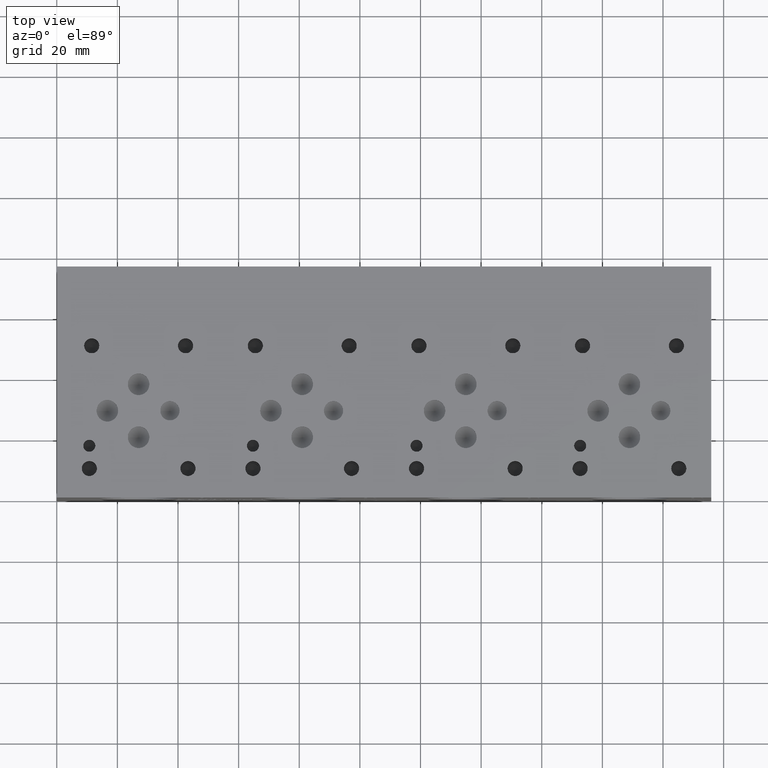
[diagram: clean part render]
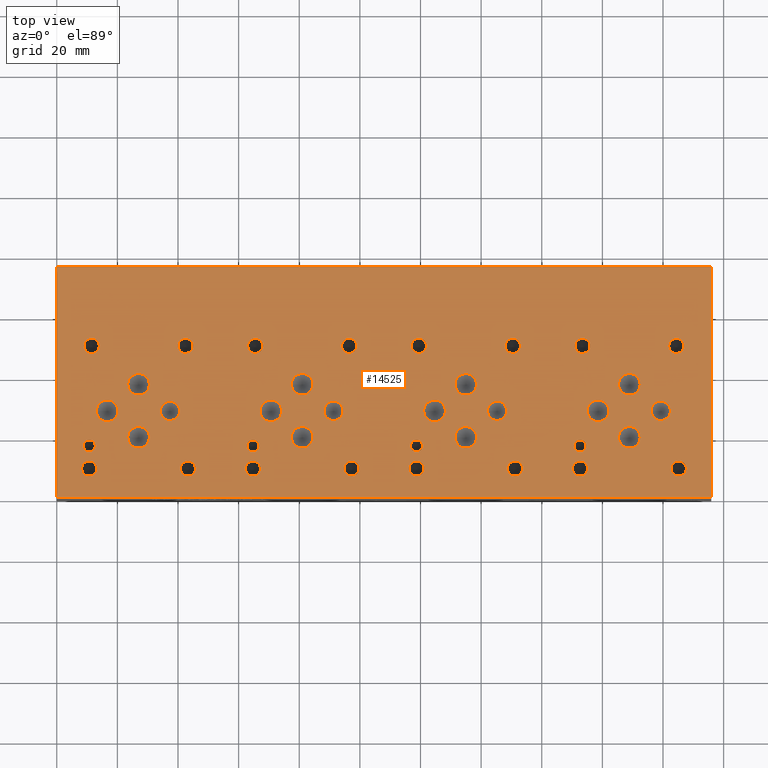
[diagram: same view with one face highlighted and labeled with its STEP entity id]
A machine part, top view. The second image highlights one B-rep face of the part: STEP entity #14525.
In plain terms, the highlighted planar face has unit normal (0, 0, 1).
Its self-contained STEP definition (entity closure, byte-faithful):
#403=CIRCLE('',#15236,2.5019);
#404=CIRCLE('',#15237,2.5019);
#410=CIRCLE('',#15247,2.5019);
#411=CIRCLE('',#15248,2.5019);
#417=CIRCLE('',#15258,2.5019);
#418=CIRCLE('',#15259,2.5019);
#424=CIRCLE('',#15269,2.5019);
#425=CIRCLE('',#15270,2.5019);
#431=CIRCLE('',#15280,2.5019);
#432=CIRCLE('',#15281,2.5019);
#438=CIRCLE('',#15291,2.5019);
#439=CIRCLE('',#15292,2.5019);
#445=CIRCLE('',#15302,2.5019);
#446=CIRCLE('',#15303,2.5019);
#452=CIRCLE('',#15313,2.5019);
#453=CIRCLE('',#15314,2.5019);
#459=CIRCLE('',#15324,2.5019);
#460=CIRCLE('',#15325,2.5019);
#466=CIRCLE('',#15335,2.5019);
#467=CIRCLE('',#15336,2.5019);
#473=CIRCLE('',#15346,2.5019);
#474=CIRCLE('',#15347,2.5019);
#480=CIRCLE('',#15357,2.5019);
#481=CIRCLE('',#15358,2.5019);
#484=CIRCLE('',#15364,3.175);
#485=CIRCLE('',#15365,3.175);
#488=CIRCLE('',#15370,3.175);
#489=CIRCLE('',#15371,3.175);
#492=CIRCLE('',#15376,3.175);
#493=CIRCLE('',#15377,3.175);
#496=CIRCLE('',#15382,3.175);
#497=CIRCLE('',#15383,3.175);
#500=CIRCLE('',#15388,3.5687);
#501=CIRCLE('',#15389,3.5687);
#504=CIRCLE('',#15394,3.5687);
#505=CIRCLE('',#15395,3.5687);
#508=CIRCLE('',#15400,3.5687);
#509=CIRCLE('',#15401,3.5687);
#512=CIRCLE('',#15406,3.5687);
#513=CIRCLE('',#15407,3.5687);
#516=CIRCLE('',#15412,3.5687);
#517=CIRCLE('',#15413,3.5687);
#520=CIRCLE('',#15418,3.5687);
#521=CIRCLE('',#15419,3.5687);
#524=CIRCLE('',#15424,3.5687);
#525=CIRCLE('',#15425,3.5687);
#528=CIRCLE('',#15430,3.5687);
#529=CIRCLE('',#15431,3.5687);
#532=CIRCLE('',#15436,3.5687);
#533=CIRCLE('',#15437,3.5687);
#536=CIRCLE('',#15442,3.5687);
#537=CIRCLE('',#15443,3.5687);
#540=CIRCLE('',#15448,3.5687);
#541=CIRCLE('',#15449,3.5687);
#544=CIRCLE('',#15454,3.5687);
#545=CIRCLE('',#15455,3.5687);
#548=CIRCLE('',#15460,1.9812);
#549=CIRCLE('',#15461,1.9812);
#552=CIRCLE('',#15466,1.9812);
#553=CIRCLE('',#15467,1.9812);
#556=CIRCLE('',#15472,1.9812);
#557=CIRCLE('',#15473,1.9812);
#560=CIRCLE('',#15478,1.9812);
#561=CIRCLE('',#15479,1.9812);
#567=CIRCLE('',#15488,2.5019);
#568=CIRCLE('',#15489,2.5019);
#574=CIRCLE('',#15499,2.5019);
#575=CIRCLE('',#15500,2.5019);
#581=CIRCLE('',#15510,2.5019);
#582=CIRCLE('',#15511,2.5019);
#588=CIRCLE('',#15521,2.5019);
#589=CIRCLE('',#15522,2.5019);
#704=FACE_BOUND('',#2843,.T.);
#705=FACE_BOUND('',#2844,.T.);
#706=FACE_BOUND('',#2845,.T.);
#707=FACE_BOUND('',#2846,.T.);
#708=FACE_BOUND('',#2847,.T.);
#709=FACE_BOUND('',#2848,.T.);
#710=FACE_BOUND('',#2849,.T.);
#711=FACE_BOUND('',#2850,.T.);
#712=FACE_BOUND('',#2851,.T.);
#713=FACE_BOUND('',#2852,.T.);
#714=FACE_BOUND('',#2853,.T.);
#715=FACE_BOUND('',#2854,.T.);
#716=FACE_BOUND('',#2855,.T.);
#717=FACE_BOUND('',#2856,.T.);
#718=FACE_BOUND('',#2857,.T.);
#719=FACE_BOUND('',#2858,.T.);
#720=FACE_BOUND('',#2859,.T.);
#721=FACE_BOUND('',#2860,.T.);
#722=FACE_BOUND('',#2861,.T.);
#723=FACE_BOUND('',#2862,.T.);
#724=FACE_BOUND('',#2863,.T.);
#725=FACE_BOUND('',#2864,.T.);
#726=FACE_BOUND('',#2865,.T.);
#727=FACE_BOUND('',#2866,.T.);
#728=FACE_BOUND('',#2867,.T.);
#729=FACE_BOUND('',#2868,.T.);
#730=FACE_BOUND('',#2869,.T.);
#731=FACE_BOUND('',#2870,.T.);
#732=FACE_BOUND('',#2871,.T.);
#733=FACE_BOUND('',#2872,.T.);
#734=FACE_BOUND('',#2873,.T.);
#735=FACE_BOUND('',#2874,.T.);
#736=FACE_BOUND('',#2875,.T.);
#737=FACE_BOUND('',#2876,.T.);
#738=FACE_BOUND('',#2877,.T.);
#739=FACE_BOUND('',#2878,.T.);
#1979=FACE_OUTER_BOUND('',#2842,.T.);
#2842=EDGE_LOOP('',(#12781,#12782,#12783,#12784));
#2843=EDGE_LOOP('',(#12785,#12786));
#2844=EDGE_LOOP('',(#12787,#12788));
#2845=EDGE_LOOP('',(#12789,#12790));
#2846=EDGE_LOOP('',(#12791,#12792));
#2847=EDGE_LOOP('',(#12793,#12794));
#2848=EDGE_LOOP('',(#12795,#12796));
#2849=EDGE_LOOP('',(#12797,#12798));
#2850=EDGE_LOOP('',(#12799,#12800));
#2851=EDGE_LOOP('',(#12801,#12802));
#2852=EDGE_LOOP('',(#12803,#12804));
#2853=EDGE_LOOP('',(#12805,#12806));
#2854=EDGE_LOOP('',(#12807,#12808));
#2855=EDGE_LOOP('',(#12809,#12810));
#2856=EDGE_LOOP('',(#12811,#12812));
#2857=EDGE_LOOP('',(#12813,#12814));
#2858=EDGE_LOOP('',(#12815,#12816));
#2859=EDGE_LOOP('',(#12817,#12818));
#2860=EDGE_LOOP('',(#12819,#12820));
#2861=EDGE_LOOP('',(#12821,#12822));
#2862=EDGE_LOOP('',(#12823,#12824));
#2863=EDGE_LOOP('',(#12825,#12826));
#2864=EDGE_LOOP('',(#12827,#12828));
#2865=EDGE_LOOP('',(#12829,#12830));
#2866=EDGE_LOOP('',(#12831,#12832));
#2867=EDGE_LOOP('',(#12833,#12834));
#2868=EDGE_LOOP('',(#12835,#12836));
#2869=EDGE_LOOP('',(#12837,#12838));
#2870=EDGE_LOOP('',(#12839,#12840));
#2871=EDGE_LOOP('',(#12841,#12842));
#2872=EDGE_LOOP('',(#12843,#12844));
#2873=EDGE_LOOP('',(#12845,#12846));
#2874=EDGE_LOOP('',(#12847,#12848));
#2875=EDGE_LOOP('',(#12849,#12850));
#2876=EDGE_LOOP('',(#12851,#12852));
#2877=EDGE_LOOP('',(#12853,#12854));
#2878=EDGE_LOOP('',(#12855,#12856));
#3176=LINE('',#20818,#4451);
#3897=LINE('',#23554,#5172);
#3955=LINE('',#23825,#5230);
#4154=LINE('',#25079,#5429);
#4451=VECTOR('',#15988,10.);
#5172=VECTOR('',#17251,10.);
#5230=VECTOR('',#17363,10.);
#5429=VECTOR('',#18776,10.);
#5740=VERTEX_POINT('',#20815);
#5741=VERTEX_POINT('',#20817);
#6333=VERTEX_POINT('',#23552);
#6391=VERTEX_POINT('',#23824);
#6618=VERTEX_POINT('',#24479);
#6619=VERTEX_POINT('',#24480);
#6626=VERTEX_POINT('',#24501);
#6627=VERTEX_POINT('',#24502);
#6634=VERTEX_POINT('',#24523);
#6635=VERTEX_POINT('',#24524);
#6642=VERTEX_POINT('',#24545);
#6643=VERTEX_POINT('',#24546);
#6650=VERTEX_POINT('',#24567);
#6651=VERTEX_POINT('',#24568);
#6658=VERTEX_POINT('',#24589);
#6659=VERTEX_POINT('',#24590);
#6666=VERTEX_POINT('',#24611);
#6667=VERTEX_POINT('',#24612);
#6674=VERTEX_POINT('',#24633);
#6675=VERTEX_POINT('',#24634);
#6682=VERTEX_POINT('',#24655);
#6683=VERTEX_POINT('',#24656);
#6690=VERTEX_POINT('',#24677);
#6691=VERTEX_POINT('',#24678);
#6698=VERTEX_POINT('',#24699);
#6699=VERTEX_POINT('',#24700);
#6706=VERTEX_POINT('',#24721);
#6707=VERTEX_POINT('',#24722);
#6711=VERTEX_POINT('',#24736);
#6712=VERTEX_POINT('',#24737);
#6716=VERTEX_POINT('',#24749);
#6717=VERTEX_POINT('',#24750);
#6721=VERTEX_POINT('',#24762);
#6722=VERTEX_POINT('',#24763);
#6726=VERTEX_POINT('',#24775);
#6727=VERTEX_POINT('',#24776);
#6731=VERTEX_POINT('',#24788);
#6732=VERTEX_POINT('',#24789);
#6736=VERTEX_POINT('',#24801);
#6737=VERTEX_POINT('',#24802);
#6741=VERTEX_POINT('',#24814);
#6742=VERTEX_POINT('',#24815);
#6746=VERTEX_POINT('',#24827);
#6747=VERTEX_POINT('',#24828);
#6751=VERTEX_POINT('',#24840);
#6752=VERTEX_POINT('',#24841);
#6756=VERTEX_POINT('',#24853);
#6757=VERTEX_POINT('',#24854);
#6761=VERTEX_POINT('',#24866);
#6762=VERTEX_POINT('',#24867);
#6766=VERTEX_POINT('',#24879);
#6767=VERTEX_POINT('',#24880);
#6771=VERTEX_POINT('',#24892);
#6772=VERTEX_POINT('',#24893);
#6776=VERTEX_POINT('',#24905);
#6777=VERTEX_POINT('',#24906);
#6781=VERTEX_POINT('',#24918);
#6782=VERTEX_POINT('',#24919);
#6786=VERTEX_POINT('',#24931);
#6787=VERTEX_POINT('',#24932);
#6791=VERTEX_POINT('',#24944);
#6792=VERTEX_POINT('',#24945);
#6796=VERTEX_POINT('',#24957);
#6797=VERTEX_POINT('',#24958);
#6801=VERTEX_POINT('',#24970);
#6802=VERTEX_POINT('',#24971);
#6806=VERTEX_POINT('',#24983);
#6807=VERTEX_POINT('',#24984);
#6814=VERTEX_POINT('',#25003);
#6815=VERTEX_POINT('',#25004);
#6822=VERTEX_POINT('',#25025);
#6823=VERTEX_POINT('',#25026);
#6830=VERTEX_POINT('',#25047);
#6831=VERTEX_POINT('',#25048);
#6838=VERTEX_POINT('',#25069);
#6839=VERTEX_POINT('',#25070);
#7304=EDGE_CURVE('',#5741,#5740,#3176,.T.);
#8185=EDGE_CURVE('',#5740,#6333,#3897,.T.);
#8267=EDGE_CURVE('',#6391,#5741,#3955,.T.);
#8571=EDGE_CURVE('',#6618,#6619,#403,.T.);
#8572=EDGE_CURVE('',#6619,#6618,#404,.T.);
#8581=EDGE_CURVE('',#6626,#6627,#410,.T.);
#8582=EDGE_CURVE('',#6627,#6626,#411,.T.);
#8591=EDGE_CURVE('',#6634,#6635,#417,.T.);
#8592=EDGE_CURVE('',#6635,#6634,#418,.T.);
#8601=EDGE_CURVE('',#6642,#6643,#424,.T.);
#8602=EDGE_CURVE('',#6643,#6642,#425,.T.);
#8611=EDGE_CURVE('',#6650,#6651,#431,.T.);
#8612=EDGE_CURVE('',#6651,#6650,#432,.T.);
#8621=EDGE_CURVE('',#6658,#6659,#438,.T.);
#8622=EDGE_CURVE('',#6659,#6658,#439,.T.);
#8631=EDGE_CURVE('',#6666,#6667,#445,.T.);
#8632=EDGE_CURVE('',#6667,#6666,#446,.T.);
#8641=EDGE_CURVE('',#6674,#6675,#452,.T.);
#8642=EDGE_CURVE('',#6675,#6674,#453,.T.);
#8651=EDGE_CURVE('',#6682,#6683,#459,.T.);
#8652=EDGE_CURVE('',#6683,#6682,#460,.T.);
#8661=EDGE_CURVE('',#6690,#6691,#466,.T.);
#8662=EDGE_CURVE('',#6691,#6690,#467,.T.);
#8671=EDGE_CURVE('',#6698,#6699,#473,.T.);
#8672=EDGE_CURVE('',#6699,#6698,#474,.T.);
#8681=EDGE_CURVE('',#6706,#6707,#480,.T.);
#8682=EDGE_CURVE('',#6707,#6706,#481,.T.);
#8688=EDGE_CURVE('',#6711,#6712,#484,.T.);
#8689=EDGE_CURVE('',#6712,#6711,#485,.T.);
#8694=EDGE_CURVE('',#6716,#6717,#488,.T.);
#8695=EDGE_CURVE('',#6717,#6716,#489,.T.);
#8700=EDGE_CURVE('',#6721,#6722,#492,.T.);
#8701=EDGE_CURVE('',#6722,#6721,#493,.T.);
#8706=EDGE_CURVE('',#6726,#6727,#496,.T.);
#8707=EDGE_CURVE('',#6727,#6726,#497,.T.);
#8712=EDGE_CURVE('',#6731,#6732,#500,.T.);
#8713=EDGE_CURVE('',#6732,#6731,#501,.T.);
#8718=EDGE_CURVE('',#6736,#6737,#504,.T.);
#8719=EDGE_CURVE('',#6737,#6736,#505,.T.);
#8724=EDGE_CURVE('',#6741,#6742,#508,.T.);
#8725=EDGE_CURVE('',#6742,#6741,#509,.T.);
#8730=EDGE_CURVE('',#6746,#6747,#512,.T.);
#8731=EDGE_CURVE('',#6747,#6746,#513,.T.);
#8736=EDGE_CURVE('',#6751,#6752,#516,.T.);
#8737=EDGE_CURVE('',#6752,#6751,#517,.T.);
#8742=EDGE_CURVE('',#6756,#6757,#520,.T.);
#8743=EDGE_CURVE('',#6757,#6756,#521,.T.);
#8748=EDGE_CURVE('',#6761,#6762,#524,.T.);
#8749=EDGE_CURVE('',#6762,#6761,#525,.T.);
#8754=EDGE_CURVE('',#6766,#6767,#528,.T.);
#8755=EDGE_CURVE('',#6767,#6766,#529,.T.);
#8760=EDGE_CURVE('',#6771,#6772,#532,.T.);
#8761=EDGE_CURVE('',#6772,#6771,#533,.T.);
#8766=EDGE_CURVE('',#6776,#6777,#536,.T.);
#8767=EDGE_CURVE('',#6777,#6776,#537,.T.);
#8772=EDGE_CURVE('',#6781,#6782,#540,.T.);
#8773=EDGE_CURVE('',#6782,#6781,#541,.T.);
#8778=EDGE_CURVE('',#6786,#6787,#544,.T.);
#8779=EDGE_CURVE('',#6787,#6786,#545,.T.);
#8784=EDGE_CURVE('',#6791,#6792,#548,.T.);
#8785=EDGE_CURVE('',#6792,#6791,#549,.T.);
#8790=EDGE_CURVE('',#6796,#6797,#552,.T.);
#8791=EDGE_CURVE('',#6797,#6796,#553,.T.);
#8796=EDGE_CURVE('',#6801,#6802,#556,.T.);
#8797=EDGE_CURVE('',#6802,#6801,#557,.T.);
#8802=EDGE_CURVE('',#6806,#6807,#560,.T.);
#8803=EDGE_CURVE('',#6807,#6806,#561,.T.);
#8811=EDGE_CURVE('',#6814,#6815,#567,.T.);
#8812=EDGE_CURVE('',#6815,#6814,#568,.T.);
#8821=EDGE_CURVE('',#6822,#6823,#574,.T.);
#8822=EDGE_CURVE('',#6823,#6822,#575,.T.);
#8831=EDGE_CURVE('',#6830,#6831,#581,.T.);
#8832=EDGE_CURVE('',#6831,#6830,#582,.T.);
#8841=EDGE_CURVE('',#6838,#6839,#588,.T.);
#8842=EDGE_CURVE('',#6839,#6838,#589,.T.);
#8846=EDGE_CURVE('',#6333,#6391,#4154,.T.);
#12781=ORIENTED_EDGE('',*,*,#7304,.T.);
#12782=ORIENTED_EDGE('',*,*,#8185,.T.);
#12783=ORIENTED_EDGE('',*,*,#8846,.T.);
#12784=ORIENTED_EDGE('',*,*,#8267,.T.);
#12785=ORIENTED_EDGE('',*,*,#8571,.T.);
#12786=ORIENTED_EDGE('',*,*,#8572,.T.);
#12787=ORIENTED_EDGE('',*,*,#8581,.T.);
#12788=ORIENTED_EDGE('',*,*,#8582,.T.);
#12789=ORIENTED_EDGE('',*,*,#8591,.T.);
#12790=ORIENTED_EDGE('',*,*,#8592,.T.);
#12791=ORIENTED_EDGE('',*,*,#8601,.T.);
#12792=ORIENTED_EDGE('',*,*,#8602,.T.);
#12793=ORIENTED_EDGE('',*,*,#8611,.T.);
#12794=ORIENTED_EDGE('',*,*,#8612,.T.);
#12795=ORIENTED_EDGE('',*,*,#8621,.T.);
#12796=ORIENTED_EDGE('',*,*,#8622,.T.);
#12797=ORIENTED_EDGE('',*,*,#8631,.T.);
#12798=ORIENTED_EDGE('',*,*,#8632,.T.);
#12799=ORIENTED_EDGE('',*,*,#8641,.T.);
#12800=ORIENTED_EDGE('',*,*,#8642,.T.);
#12801=ORIENTED_EDGE('',*,*,#8651,.T.);
#12802=ORIENTED_EDGE('',*,*,#8652,.T.);
#12803=ORIENTED_EDGE('',*,*,#8661,.T.);
#12804=ORIENTED_EDGE('',*,*,#8662,.T.);
#12805=ORIENTED_EDGE('',*,*,#8671,.T.);
#12806=ORIENTED_EDGE('',*,*,#8672,.T.);
#12807=ORIENTED_EDGE('',*,*,#8681,.T.);
#12808=ORIENTED_EDGE('',*,*,#8682,.T.);
#12809=ORIENTED_EDGE('',*,*,#8688,.T.);
#12810=ORIENTED_EDGE('',*,*,#8689,.T.);
#12811=ORIENTED_EDGE('',*,*,#8694,.T.);
#12812=ORIENTED_EDGE('',*,*,#8695,.T.);
#12813=ORIENTED_EDGE('',*,*,#8700,.T.);
#12814=ORIENTED_EDGE('',*,*,#8701,.T.);
#12815=ORIENTED_EDGE('',*,*,#8706,.T.);
#12816=ORIENTED_EDGE('',*,*,#8707,.T.);
#12817=ORIENTED_EDGE('',*,*,#8712,.T.);
#12818=ORIENTED_EDGE('',*,*,#8713,.T.);
#12819=ORIENTED_EDGE('',*,*,#8718,.T.);
#12820=ORIENTED_EDGE('',*,*,#8719,.T.);
#12821=ORIENTED_EDGE('',*,*,#8724,.T.);
#12822=ORIENTED_EDGE('',*,*,#8725,.T.);
#12823=ORIENTED_EDGE('',*,*,#8730,.T.);
#12824=ORIENTED_EDGE('',*,*,#8731,.T.);
#12825=ORIENTED_EDGE('',*,*,#8736,.T.);
#12826=ORIENTED_EDGE('',*,*,#8737,.T.);
#12827=ORIENTED_EDGE('',*,*,#8742,.T.);
#12828=ORIENTED_EDGE('',*,*,#8743,.T.);
#12829=ORIENTED_EDGE('',*,*,#8748,.T.);
#12830=ORIENTED_EDGE('',*,*,#8749,.T.);
#12831=ORIENTED_EDGE('',*,*,#8754,.T.);
#12832=ORIENTED_EDGE('',*,*,#8755,.T.);
#12833=ORIENTED_EDGE('',*,*,#8760,.T.);
#12834=ORIENTED_EDGE('',*,*,#8761,.T.);
#12835=ORIENTED_EDGE('',*,*,#8766,.T.);
#12836=ORIENTED_EDGE('',*,*,#8767,.T.);
#12837=ORIENTED_EDGE('',*,*,#8772,.T.);
#12838=ORIENTED_EDGE('',*,*,#8773,.T.);
#12839=ORIENTED_EDGE('',*,*,#8778,.T.);
#12840=ORIENTED_EDGE('',*,*,#8779,.T.);
#12841=ORIENTED_EDGE('',*,*,#8784,.T.);
#12842=ORIENTED_EDGE('',*,*,#8785,.T.);
#12843=ORIENTED_EDGE('',*,*,#8790,.T.);
#12844=ORIENTED_EDGE('',*,*,#8791,.T.);
#12845=ORIENTED_EDGE('',*,*,#8796,.T.);
#12846=ORIENTED_EDGE('',*,*,#8797,.T.);
#12847=ORIENTED_EDGE('',*,*,#8802,.T.);
#12848=ORIENTED_EDGE('',*,*,#8803,.T.);
#12849=ORIENTED_EDGE('',*,*,#8811,.T.);
#12850=ORIENTED_EDGE('',*,*,#8812,.T.);
#12851=ORIENTED_EDGE('',*,*,#8821,.T.);
#12852=ORIENTED_EDGE('',*,*,#8822,.T.);
#12853=ORIENTED_EDGE('',*,*,#8831,.T.);
#12854=ORIENTED_EDGE('',*,*,#8832,.T.);
#12855=ORIENTED_EDGE('',*,*,#8841,.T.);
#12856=ORIENTED_EDGE('',*,*,#8842,.T.);
#13272=PLANE('',#15528);
#14525=ADVANCED_FACE('',(#1979,#704,#705,#706,#707,#708,#709,#710,#711,
#712,#713,#714,#715,#716,#717,#718,#719,#720,#721,#722,#723,#724,#725,#726,
#727,#728,#729,#730,#731,#732,#733,#734,#735,#736,#737,#738,#739),#13272,
 .T.);
#15236=AXIS2_PLACEMENT_3D('',#24481,#18108,#18109);
#15237=AXIS2_PLACEMENT_3D('',#24482,#18110,#18111);
#15247=AXIS2_PLACEMENT_3D('',#24503,#18133,#18134);
#15248=AXIS2_PLACEMENT_3D('',#24504,#18135,#18136);
#15258=AXIS2_PLACEMENT_3D('',#24525,#18158,#18159);
#15259=AXIS2_PLACEMENT_3D('',#24526,#18160,#18161);
#15269=AXIS2_PLACEMENT_3D('',#24547,#18183,#18184);
#15270=AXIS2_PLACEMENT_3D('',#24548,#18185,#18186);
#15280=AXIS2_PLACEMENT_3D('',#24569,#18208,#18209);
#15281=AXIS2_PLACEMENT_3D('',#24570,#18210,#18211);
#15291=AXIS2_PLACEMENT_3D('',#24591,#18233,#18234);
#15292=AXIS2_PLACEMENT_3D('',#24592,#18235,#18236);
#15302=AXIS2_PLACEMENT_3D('',#24613,#18258,#18259);
#15303=AXIS2_PLACEMENT_3D('',#24614,#18260,#18261);
#15313=AXIS2_PLACEMENT_3D('',#24635,#18283,#18284);
#15314=AXIS2_PLACEMENT_3D('',#24636,#18285,#18286);
#15324=AXIS2_PLACEMENT_3D('',#24657,#18308,#18309);
#15325=AXIS2_PLACEMENT_3D('',#24658,#18310,#18311);
#15335=AXIS2_PLACEMENT_3D('',#24679,#18333,#18334);
#15336=AXIS2_PLACEMENT_3D('',#24680,#18335,#18336);
#15346=AXIS2_PLACEMENT_3D('',#24701,#18358,#18359);
#15347=AXIS2_PLACEMENT_3D('',#24702,#18360,#18361);
#15357=AXIS2_PLACEMENT_3D('',#24723,#18383,#18384);
#15358=AXIS2_PLACEMENT_3D('',#24724,#18385,#18386);
#15364=AXIS2_PLACEMENT_3D('',#24738,#18400,#18401);
#15365=AXIS2_PLACEMENT_3D('',#24739,#18402,#18403);
#15370=AXIS2_PLACEMENT_3D('',#24751,#18414,#18415);
#15371=AXIS2_PLACEMENT_3D('',#24752,#18416,#18417);
#15376=AXIS2_PLACEMENT_3D('',#24764,#18428,#18429);
#15377=AXIS2_PLACEMENT_3D('',#24765,#18430,#18431);
#15382=AXIS2_PLACEMENT_3D('',#24777,#18442,#18443);
#15383=AXIS2_PLACEMENT_3D('',#24778,#18444,#18445);
#15388=AXIS2_PLACEMENT_3D('',#24790,#18456,#18457);
#15389=AXIS2_PLACEMENT_3D('',#24791,#18458,#18459);
#15394=AXIS2_PLACEMENT_3D('',#24803,#18470,#18471);
#15395=AXIS2_PLACEMENT_3D('',#24804,#18472,#18473);
#15400=AXIS2_PLACEMENT_3D('',#24816,#18484,#18485);
#15401=AXIS2_PLACEMENT_3D('',#24817,#18486,#18487);
#15406=AXIS2_PLACEMENT_3D('',#24829,#18498,#18499);
#15407=AXIS2_PLACEMENT_3D('',#24830,#18500,#18501);
#15412=AXIS2_PLACEMENT_3D('',#24842,#18512,#18513);
#15413=AXIS2_PLACEMENT_3D('',#24843,#18514,#18515);
#15418=AXIS2_PLACEMENT_3D('',#24855,#18526,#18527);
#15419=AXIS2_PLACEMENT_3D('',#24856,#18528,#18529);
#15424=AXIS2_PLACEMENT_3D('',#24868,#18540,#18541);
#15425=AXIS2_PLACEMENT_3D('',#24869,#18542,#18543);
#15430=AXIS2_PLACEMENT_3D('',#24881,#18554,#18555);
#15431=AXIS2_PLACEMENT_3D('',#24882,#18556,#18557);
#15436=AXIS2_PLACEMENT_3D('',#24894,#18568,#18569);
#15437=AXIS2_PLACEMENT_3D('',#24895,#18570,#18571);
#15442=AXIS2_PLACEMENT_3D('',#24907,#18582,#18583);
#15443=AXIS2_PLACEMENT_3D('',#24908,#18584,#18585);
#15448=AXIS2_PLACEMENT_3D('',#24920,#18596,#18597);
#15449=AXIS2_PLACEMENT_3D('',#24921,#18598,#18599);
#15454=AXIS2_PLACEMENT_3D('',#24933,#18610,#18611);
#15455=AXIS2_PLACEMENT_3D('',#24934,#18612,#18613);
#15460=AXIS2_PLACEMENT_3D('',#24946,#18624,#18625);
#15461=AXIS2_PLACEMENT_3D('',#24947,#18626,#18627);
#15466=AXIS2_PLACEMENT_3D('',#24959,#18638,#18639);
#15467=AXIS2_PLACEMENT_3D('',#24960,#18640,#18641);
#15472=AXIS2_PLACEMENT_3D('',#24972,#18652,#18653);
#15473=AXIS2_PLACEMENT_3D('',#24973,#18654,#18655);
#15478=AXIS2_PLACEMENT_3D('',#24985,#18666,#18667);
#15479=AXIS2_PLACEMENT_3D('',#24986,#18668,#18669);
#15488=AXIS2_PLACEMENT_3D('',#25005,#18688,#18689);
#15489=AXIS2_PLACEMENT_3D('',#25006,#18690,#18691);
#15499=AXIS2_PLACEMENT_3D('',#25027,#18713,#18714);
#15500=AXIS2_PLACEMENT_3D('',#25028,#18715,#18716);
#15510=AXIS2_PLACEMENT_3D('',#25049,#18738,#18739);
#15511=AXIS2_PLACEMENT_3D('',#25050,#18740,#18741);
#15521=AXIS2_PLACEMENT_3D('',#25071,#18763,#18764);
#15522=AXIS2_PLACEMENT_3D('',#25072,#18765,#18766);
#15528=AXIS2_PLACEMENT_3D('',#25082,#18781,#18782);
#15988=DIRECTION('',(1.,0.,0.));
#17251=DIRECTION('',(0.,1.,0.));
#17363=DIRECTION('',(0.,-1.,0.));
#18108=DIRECTION('center_axis',(0.,0.,-1.));
#18109=DIRECTION('ref_axis',(1.,0.,0.));
#18110=DIRECTION('center_axis',(0.,0.,-1.));
#18111=DIRECTION('ref_axis',(1.,0.,0.));
#18133=DIRECTION('center_axis',(0.,0.,-1.));
#18134=DIRECTION('ref_axis',(1.,0.,0.));
#18135=DIRECTION('center_axis',(0.,0.,-1.));
#18136=DIRECTION('ref_axis',(1.,0.,0.));
#18158=DIRECTION('center_axis',(0.,0.,-1.));
#18159=DIRECTION('ref_axis',(1.,0.,0.));
#18160=DIRECTION('center_axis',(0.,0.,-1.));
#18161=DIRECTION('ref_axis',(1.,0.,0.));
#18183=DIRECTION('center_axis',(0.,0.,-1.));
#18184=DIRECTION('ref_axis',(1.,0.,0.));
#18185=DIRECTION('center_axis',(0.,0.,-1.));
#18186=DIRECTION('ref_axis',(1.,0.,0.));
#18208=DIRECTION('center_axis',(0.,0.,-1.));
#18209=DIRECTION('ref_axis',(1.,0.,0.));
#18210=DIRECTION('center_axis',(0.,0.,-1.));
#18211=DIRECTION('ref_axis',(1.,0.,0.));
#18233=DIRECTION('center_axis',(0.,0.,-1.));
#18234=DIRECTION('ref_axis',(1.,0.,0.));
#18235=DIRECTION('center_axis',(0.,0.,-1.));
#18236=DIRECTION('ref_axis',(1.,0.,0.));
#18258=DIRECTION('center_axis',(0.,0.,-1.));
#18259=DIRECTION('ref_axis',(1.,0.,0.));
#18260=DIRECTION('center_axis',(0.,0.,-1.));
#18261=DIRECTION('ref_axis',(1.,0.,0.));
#18283=DIRECTION('center_axis',(0.,0.,-1.));
#18284=DIRECTION('ref_axis',(1.,0.,0.));
#18285=DIRECTION('center_axis',(0.,0.,-1.));
#18286=DIRECTION('ref_axis',(1.,0.,0.));
#18308=DIRECTION('center_axis',(0.,0.,-1.));
#18309=DIRECTION('ref_axis',(1.,0.,0.));
#18310=DIRECTION('center_axis',(0.,0.,-1.));
#18311=DIRECTION('ref_axis',(1.,0.,0.));
#18333=DIRECTION('center_axis',(0.,0.,-1.));
#18334=DIRECTION('ref_axis',(1.,0.,0.));
#18335=DIRECTION('center_axis',(0.,0.,-1.));
#18336=DIRECTION('ref_axis',(1.,0.,0.));
#18358=DIRECTION('center_axis',(0.,0.,-1.));
#18359=DIRECTION('ref_axis',(1.,0.,0.));
#18360=DIRECTION('center_axis',(0.,0.,-1.));
#18361=DIRECTION('ref_axis',(1.,0.,0.));
#18383=DIRECTION('center_axis',(0.,0.,-1.));
#18384=DIRECTION('ref_axis',(1.,0.,0.));
#18385=DIRECTION('center_axis',(0.,0.,-1.));
#18386=DIRECTION('ref_axis',(1.,0.,0.));
#18400=DIRECTION('center_axis',(0.,0.,-1.));
#18401=DIRECTION('ref_axis',(1.,0.,0.));
#18402=DIRECTION('center_axis',(0.,0.,-1.));
#18403=DIRECTION('ref_axis',(1.,0.,0.));
#18414=DIRECTION('center_axis',(0.,0.,-1.));
#18415=DIRECTION('ref_axis',(1.,0.,0.));
#18416=DIRECTION('center_axis',(0.,0.,-1.));
#18417=DIRECTION('ref_axis',(1.,0.,0.));
#18428=DIRECTION('center_axis',(0.,0.,-1.));
#18429=DIRECTION('ref_axis',(1.,0.,0.));
#18430=DIRECTION('center_axis',(0.,0.,-1.));
#18431=DIRECTION('ref_axis',(1.,0.,0.));
#18442=DIRECTION('center_axis',(0.,0.,-1.));
#18443=DIRECTION('ref_axis',(1.,0.,0.));
#18444=DIRECTION('center_axis',(0.,0.,-1.));
#18445=DIRECTION('ref_axis',(1.,0.,0.));
#18456=DIRECTION('center_axis',(0.,0.,-1.));
#18457=DIRECTION('ref_axis',(1.,0.,0.));
#18458=DIRECTION('center_axis',(0.,0.,-1.));
#18459=DIRECTION('ref_axis',(1.,0.,0.));
#18470=DIRECTION('center_axis',(0.,0.,-1.));
#18471=DIRECTION('ref_axis',(1.,0.,0.));
#18472=DIRECTION('center_axis',(0.,0.,-1.));
#18473=DIRECTION('ref_axis',(1.,0.,0.));
#18484=DIRECTION('center_axis',(0.,0.,-1.));
#18485=DIRECTION('ref_axis',(1.,0.,0.));
#18486=DIRECTION('center_axis',(0.,0.,-1.));
#18487=DIRECTION('ref_axis',(1.,0.,0.));
#18498=DIRECTION('center_axis',(0.,0.,-1.));
#18499=DIRECTION('ref_axis',(1.,0.,0.));
#18500=DIRECTION('center_axis',(0.,0.,-1.));
#18501=DIRECTION('ref_axis',(1.,0.,0.));
#18512=DIRECTION('center_axis',(0.,0.,-1.));
#18513=DIRECTION('ref_axis',(1.,0.,0.));
#18514=DIRECTION('center_axis',(0.,0.,-1.));
#18515=DIRECTION('ref_axis',(1.,0.,0.));
#18526=DIRECTION('center_axis',(0.,0.,-1.));
#18527=DIRECTION('ref_axis',(1.,0.,0.));
#18528=DIRECTION('center_axis',(0.,0.,-1.));
#18529=DIRECTION('ref_axis',(1.,0.,0.));
#18540=DIRECTION('center_axis',(0.,0.,-1.));
#18541=DIRECTION('ref_axis',(1.,0.,0.));
#18542=DIRECTION('center_axis',(0.,0.,-1.));
#18543=DIRECTION('ref_axis',(1.,0.,0.));
#18554=DIRECTION('center_axis',(0.,0.,-1.));
#18555=DIRECTION('ref_axis',(1.,0.,0.));
#18556=DIRECTION('center_axis',(0.,0.,-1.));
#18557=DIRECTION('ref_axis',(1.,0.,0.));
#18568=DIRECTION('center_axis',(0.,0.,-1.));
#18569=DIRECTION('ref_axis',(1.,0.,0.));
#18570=DIRECTION('center_axis',(0.,0.,-1.));
#18571=DIRECTION('ref_axis',(1.,0.,0.));
#18582=DIRECTION('center_axis',(0.,0.,-1.));
#18583=DIRECTION('ref_axis',(1.,0.,0.));
#18584=DIRECTION('center_axis',(0.,0.,-1.));
#18585=DIRECTION('ref_axis',(1.,0.,0.));
#18596=DIRECTION('center_axis',(0.,0.,-1.));
#18597=DIRECTION('ref_axis',(1.,0.,0.));
#18598=DIRECTION('center_axis',(0.,0.,-1.));
#18599=DIRECTION('ref_axis',(1.,0.,0.));
#18610=DIRECTION('center_axis',(0.,0.,-1.));
#18611=DIRECTION('ref_axis',(1.,0.,0.));
#18612=DIRECTION('center_axis',(0.,0.,-1.));
#18613=DIRECTION('ref_axis',(1.,0.,0.));
#18624=DIRECTION('center_axis',(0.,0.,-1.));
#18625=DIRECTION('ref_axis',(1.,0.,0.));
#18626=DIRECTION('center_axis',(0.,0.,-1.));
#18627=DIRECTION('ref_axis',(1.,0.,0.));
#18638=DIRECTION('center_axis',(0.,0.,-1.));
#18639=DIRECTION('ref_axis',(1.,0.,0.));
#18640=DIRECTION('center_axis',(0.,0.,-1.));
#18641=DIRECTION('ref_axis',(1.,0.,0.));
#18652=DIRECTION('center_axis',(0.,0.,-1.));
#18653=DIRECTION('ref_axis',(1.,0.,0.));
#18654=DIRECTION('center_axis',(0.,0.,-1.));
#18655=DIRECTION('ref_axis',(1.,0.,0.));
#18666=DIRECTION('center_axis',(0.,0.,-1.));
#18667=DIRECTION('ref_axis',(1.,0.,0.));
#18668=DIRECTION('center_axis',(0.,0.,-1.));
#18669=DIRECTION('ref_axis',(1.,0.,0.));
#18688=DIRECTION('center_axis',(0.,0.,-1.));
#18689=DIRECTION('ref_axis',(1.,0.,0.));
#18690=DIRECTION('center_axis',(0.,0.,-1.));
#18691=DIRECTION('ref_axis',(1.,0.,0.));
#18713=DIRECTION('center_axis',(0.,0.,-1.));
#18714=DIRECTION('ref_axis',(1.,0.,0.));
#18715=DIRECTION('center_axis',(0.,0.,-1.));
#18716=DIRECTION('ref_axis',(1.,0.,0.));
#18738=DIRECTION('center_axis',(0.,0.,-1.));
#18739=DIRECTION('ref_axis',(1.,0.,0.));
#18740=DIRECTION('center_axis',(0.,0.,-1.));
#18741=DIRECTION('ref_axis',(1.,0.,0.));
#18763=DIRECTION('center_axis',(0.,0.,-1.));
#18764=DIRECTION('ref_axis',(1.,0.,0.));
#18765=DIRECTION('center_axis',(0.,0.,-1.));
#18766=DIRECTION('ref_axis',(1.,0.,0.));
#18776=DIRECTION('',(-1.,0.,0.));
#18781=DIRECTION('center_axis',(0.,0.,1.));
#18782=DIRECTION('ref_axis',(1.,0.,0.));
#20815=CARTESIAN_POINT('',(215.9,0.,76.2));
#20817=CARTESIAN_POINT('',(0.,0.,76.2));
#20818=CARTESIAN_POINT('',(0.,0.,76.2));
#23552=CARTESIAN_POINT('',(215.9,76.2,76.2));
#23554=CARTESIAN_POINT('',(215.9,0.,76.2));
#23824=CARTESIAN_POINT('',(0.,76.2,76.2));
#23825=CARTESIAN_POINT('',(0.,76.2,76.2));
#24479=CARTESIAN_POINT('',(207.6831,9.525,76.2));
#24480=CARTESIAN_POINT('',(202.6793,9.525,76.2));
#24481=CARTESIAN_POINT('Origin',(205.1812,9.525,76.2));
#24482=CARTESIAN_POINT('Origin',(205.1812,9.525,76.2));
#24501=CARTESIAN_POINT('',(175.9331,50.0126,76.2));
#24502=CARTESIAN_POINT('',(170.9293,50.0126,76.2));
#24503=CARTESIAN_POINT('Origin',(173.4312,50.0126,76.2));
#24504=CARTESIAN_POINT('Origin',(173.4312,50.0126,76.2));
#24523=CARTESIAN_POINT('',(153.7081,9.525,76.2));
#24524=CARTESIAN_POINT('',(148.7043,9.525,76.2));
#24525=CARTESIAN_POINT('Origin',(151.2062,9.525,76.2));
#24526=CARTESIAN_POINT('Origin',(151.2062,9.525,76.2));
#24545=CARTESIAN_POINT('',(121.9581,50.0126,76.2));
#24546=CARTESIAN_POINT('',(116.9543,50.0126,76.2));
#24547=CARTESIAN_POINT('Origin',(119.4562,50.0126,76.2));
#24548=CARTESIAN_POINT('Origin',(119.4562,50.0126,76.2));
#24567=CARTESIAN_POINT('',(99.7331,9.525,76.2));
#24568=CARTESIAN_POINT('',(94.7293,9.525,76.2));
#24569=CARTESIAN_POINT('Origin',(97.2312,9.525,76.2));
#24570=CARTESIAN_POINT('Origin',(97.2312,9.525,76.2));
#24589=CARTESIAN_POINT('',(67.9831,50.0126,76.2));
#24590=CARTESIAN_POINT('',(62.9793,50.0126,76.2));
#24591=CARTESIAN_POINT('Origin',(65.4812,50.0126,76.2));
#24592=CARTESIAN_POINT('Origin',(65.4812,50.0126,76.2));
#24611=CARTESIAN_POINT('',(98.9457,50.0126,76.2));
#24612=CARTESIAN_POINT('',(93.9419,50.0126,76.2));
#24613=CARTESIAN_POINT('Origin',(96.4438,50.0126,76.2));
#24614=CARTESIAN_POINT('Origin',(96.4438,50.0126,76.2));
#24633=CARTESIAN_POINT('',(67.1957,9.525,76.2));
#24634=CARTESIAN_POINT('',(62.1919,9.525,76.2));
#24635=CARTESIAN_POINT('Origin',(64.6938,9.525,76.2));
#24636=CARTESIAN_POINT('Origin',(64.6938,9.525,76.2));
#24655=CARTESIAN_POINT('',(152.9207,50.0126,76.2));
#24656=CARTESIAN_POINT('',(147.9169,50.0126,76.2));
#24657=CARTESIAN_POINT('Origin',(150.4188,50.0126,76.2));
#24658=CARTESIAN_POINT('Origin',(150.4188,50.0126,76.2));
#24677=CARTESIAN_POINT('',(121.1707,9.525,76.2));
#24678=CARTESIAN_POINT('',(116.1669,9.525,76.2));
#24679=CARTESIAN_POINT('Origin',(118.6688,9.525,76.2));
#24680=CARTESIAN_POINT('Origin',(118.6688,9.525,76.2));
#24699=CARTESIAN_POINT('',(206.8957,50.0126,76.2));
#24700=CARTESIAN_POINT('',(201.8919,50.0126,76.2));
#24701=CARTESIAN_POINT('Origin',(204.3938,50.0126,76.2));
#24702=CARTESIAN_POINT('Origin',(204.3938,50.0126,76.2));
#24721=CARTESIAN_POINT('',(175.1457,9.525,76.2));
#24722=CARTESIAN_POINT('',(170.1419,9.525,76.2));
#24723=CARTESIAN_POINT('Origin',(172.6438,9.525,76.2));
#24724=CARTESIAN_POINT('Origin',(172.6438,9.525,76.2));
#24736=CARTESIAN_POINT('',(148.4376,28.575,76.2));
#24737=CARTESIAN_POINT('',(142.0876,28.575,76.2));
#24738=CARTESIAN_POINT('Origin',(145.2626,28.575,76.2));
#24739=CARTESIAN_POINT('Origin',(145.2626,28.575,76.2));
#24749=CARTESIAN_POINT('',(40.4876,28.575,76.2));
#24750=CARTESIAN_POINT('',(34.1376,28.575,76.2));
#24751=CARTESIAN_POINT('Origin',(37.3126,28.575,76.2));
#24752=CARTESIAN_POINT('Origin',(37.3126,28.575,76.2));
#24762=CARTESIAN_POINT('',(94.4626,28.575,76.2));
#24763=CARTESIAN_POINT('',(88.1126,28.575,76.2));
#24764=CARTESIAN_POINT('Origin',(91.2876,28.575,76.2));
#24765=CARTESIAN_POINT('Origin',(91.2876,28.575,76.2));
#24775=CARTESIAN_POINT('',(202.4126,28.575,76.2));
#24776=CARTESIAN_POINT('',(196.0626,28.575,76.2));
#24777=CARTESIAN_POINT('Origin',(199.2376,28.575,76.2));
#24778=CARTESIAN_POINT('Origin',(199.2376,28.575,76.2));
#24788=CARTESIAN_POINT('',(192.4685,37.3126,76.2));
#24789=CARTESIAN_POINT('',(185.3311,37.3126,76.2));
#24790=CARTESIAN_POINT('Origin',(188.8998,37.3126,76.2));
#24791=CARTESIAN_POINT('Origin',(188.8998,37.3126,76.2));
#24801=CARTESIAN_POINT('',(138.4935,19.8374,76.2));
#24802=CARTESIAN_POINT('',(131.3561,19.8374,76.2));
#24803=CARTESIAN_POINT('Origin',(134.9248,19.8374,76.2));
#24804=CARTESIAN_POINT('Origin',(134.9248,19.8374,76.2));
#24814=CARTESIAN_POINT('',(128.1811,28.575,76.2));
#24815=CARTESIAN_POINT('',(121.0437,28.575,76.2));
#24816=CARTESIAN_POINT('Origin',(124.6124,28.575,76.2));
#24817=CARTESIAN_POINT('Origin',(124.6124,28.575,76.2));
#24827=CARTESIAN_POINT('',(84.5185,37.3126,76.2));
#24828=CARTESIAN_POINT('',(77.3811,37.3126,76.2));
#24829=CARTESIAN_POINT('Origin',(80.9498,37.3126,76.2));
#24830=CARTESIAN_POINT('Origin',(80.9498,37.3126,76.2));
#24840=CARTESIAN_POINT('',(30.5435,19.8374,76.2));
#24841=CARTESIAN_POINT('',(23.4061,19.8374,76.2));
#24842=CARTESIAN_POINT('Origin',(26.9748,19.8374,76.2));
#24843=CARTESIAN_POINT('Origin',(26.9748,19.8374,76.2));
#24853=CARTESIAN_POINT('',(20.2311,28.575,76.2));
#24854=CARTESIAN_POINT('',(13.0937,28.575,76.2));
#24855=CARTESIAN_POINT('Origin',(16.6624,28.575,76.2));
#24856=CARTESIAN_POINT('Origin',(16.6624,28.575,76.2));
#24866=CARTESIAN_POINT('',(30.5435,37.3126,76.2));
#24867=CARTESIAN_POINT('',(23.4061,37.3126,76.2));
#24868=CARTESIAN_POINT('Origin',(26.9748,37.3126,76.2));
#24869=CARTESIAN_POINT('Origin',(26.9748,37.3126,76.2));
#24879=CARTESIAN_POINT('',(74.2061,28.575,76.2));
#24880=CARTESIAN_POINT('',(67.0687,28.575,76.2));
#24881=CARTESIAN_POINT('Origin',(70.6374,28.575,76.2));
#24882=CARTESIAN_POINT('Origin',(70.6374,28.575,76.2));
#24892=CARTESIAN_POINT('',(84.5185,19.8374,76.2));
#24893=CARTESIAN_POINT('',(77.3811,19.8374,76.2));
#24894=CARTESIAN_POINT('Origin',(80.9498,19.8374,76.2));
#24895=CARTESIAN_POINT('Origin',(80.9498,19.8374,76.2));
#24905=CARTESIAN_POINT('',(138.4935,37.3126,76.2));
#24906=CARTESIAN_POINT('',(131.3561,37.3126,76.2));
#24907=CARTESIAN_POINT('Origin',(134.9248,37.3126,76.2));
#24908=CARTESIAN_POINT('Origin',(134.9248,37.3126,76.2));
#24918=CARTESIAN_POINT('',(182.1561,28.575,76.2));
#24919=CARTESIAN_POINT('',(175.0187,28.575,76.2));
#24920=CARTESIAN_POINT('Origin',(178.5874,28.575,76.2));
#24921=CARTESIAN_POINT('Origin',(178.5874,28.575,76.2));
#24931=CARTESIAN_POINT('',(192.4685,19.8374,76.2));
#24932=CARTESIAN_POINT('',(185.3311,19.8374,76.2));
#24933=CARTESIAN_POINT('Origin',(188.8998,19.8374,76.2));
#24934=CARTESIAN_POINT('Origin',(188.8998,19.8374,76.2));
#24944=CARTESIAN_POINT('',(120.65,17.018,76.2));
#24945=CARTESIAN_POINT('',(116.6876,17.018,76.2));
#24946=CARTESIAN_POINT('Origin',(118.6688,17.018,76.2));
#24947=CARTESIAN_POINT('Origin',(118.6688,17.018,76.2));
#24957=CARTESIAN_POINT('',(12.7,17.018,76.2));
#24958=CARTESIAN_POINT('',(8.7376,17.018,76.2));
#24959=CARTESIAN_POINT('Origin',(10.7188,17.018,76.2));
#24960=CARTESIAN_POINT('Origin',(10.7188,17.018,76.2));
#24970=CARTESIAN_POINT('',(66.675,17.018,76.2));
#24971=CARTESIAN_POINT('',(62.7126,17.018,76.2));
#24972=CARTESIAN_POINT('Origin',(64.6938,17.018,76.2));
#24973=CARTESIAN_POINT('Origin',(64.6938,17.018,76.2));
#24983=CARTESIAN_POINT('',(174.625,17.018,76.2));
#24984=CARTESIAN_POINT('',(170.6626,17.018,76.2));
#24985=CARTESIAN_POINT('Origin',(172.6438,17.018,76.2));
#24986=CARTESIAN_POINT('Origin',(172.6438,17.018,76.2));
#25003=CARTESIAN_POINT('',(45.7581,9.525,76.2));
#25004=CARTESIAN_POINT('',(40.7543,9.525,76.2));
#25005=CARTESIAN_POINT('Origin',(43.2562,9.525,76.2));
#25006=CARTESIAN_POINT('Origin',(43.2562,9.525,76.2));
#25025=CARTESIAN_POINT('',(14.0081,50.0126,76.2));
#25026=CARTESIAN_POINT('',(9.0043,50.0126,76.2));
#25027=CARTESIAN_POINT('Origin',(11.5062,50.0126,76.2));
#25028=CARTESIAN_POINT('Origin',(11.5062,50.0126,76.2));
#25047=CARTESIAN_POINT('',(44.9707,50.0126,76.2));
#25048=CARTESIAN_POINT('',(39.9669,50.0126,76.2));
#25049=CARTESIAN_POINT('Origin',(42.4688,50.0126,76.2));
#25050=CARTESIAN_POINT('Origin',(42.4688,50.0126,76.2));
#25069=CARTESIAN_POINT('',(13.2207,9.525,76.2));
#25070=CARTESIAN_POINT('',(8.2169,9.525,76.2));
#25071=CARTESIAN_POINT('Origin',(10.7188,9.525,76.2));
#25072=CARTESIAN_POINT('Origin',(10.7188,9.525,76.2));
#25079=CARTESIAN_POINT('',(215.9,76.2,76.2));
#25082=CARTESIAN_POINT('Origin',(107.95,38.1,76.2));